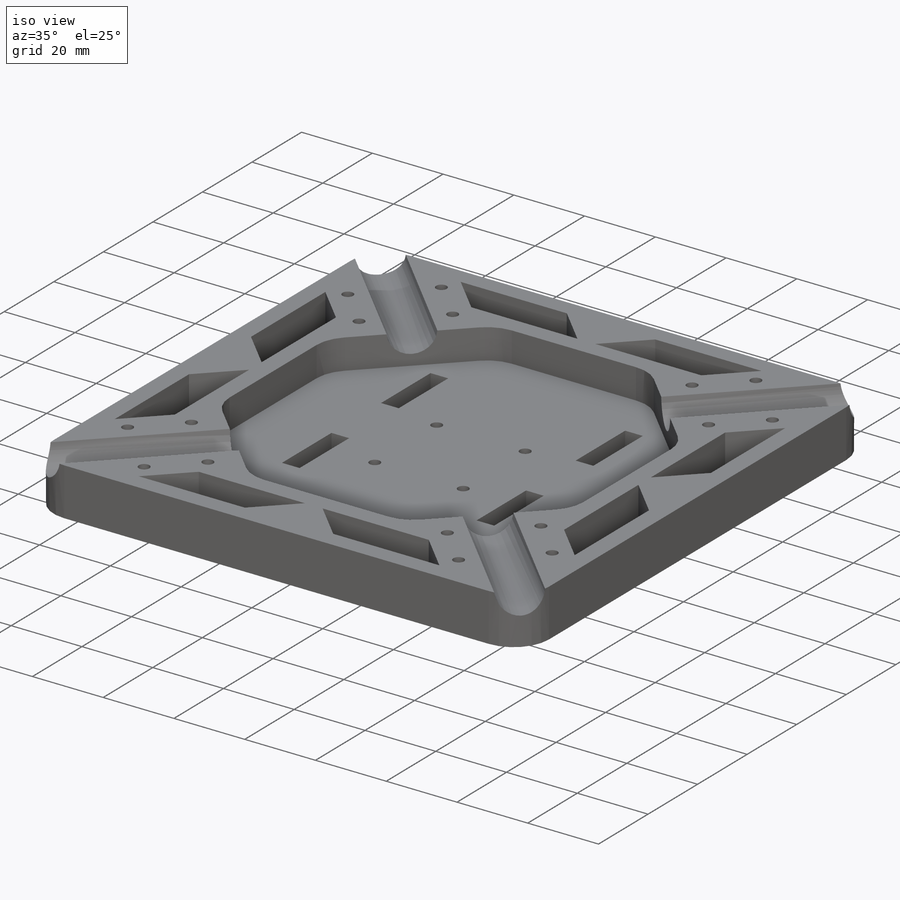
[diagram: iso view]
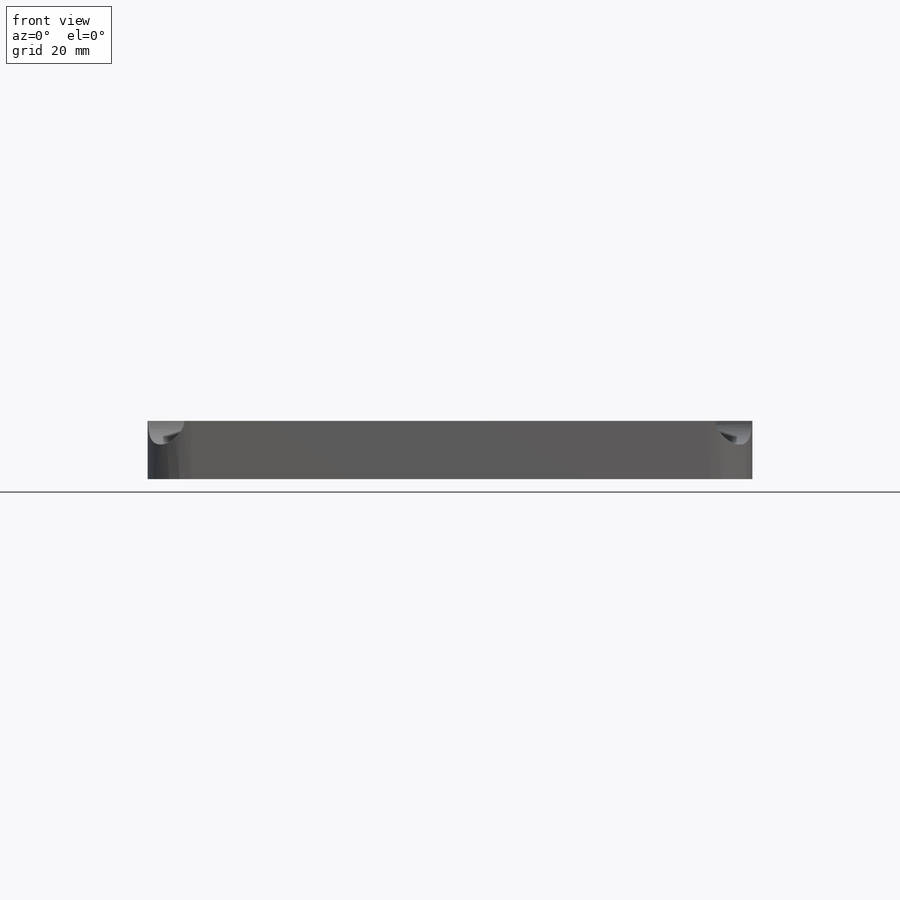
[diagram: front view]
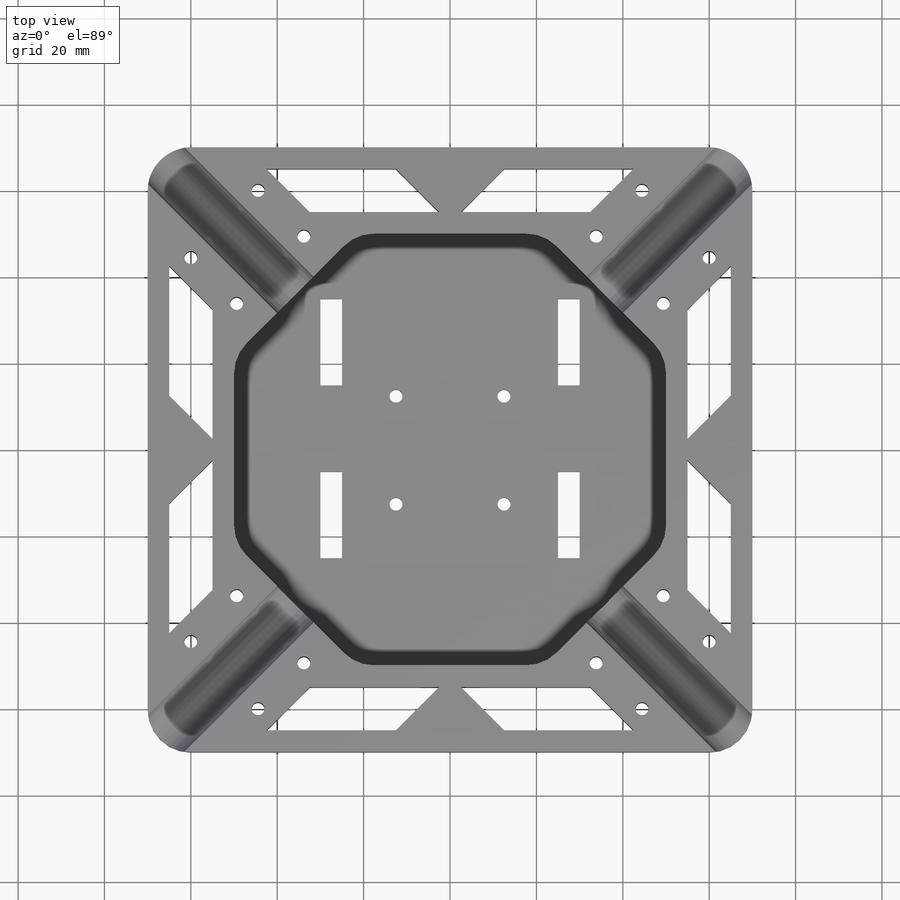
[diagram: top view]
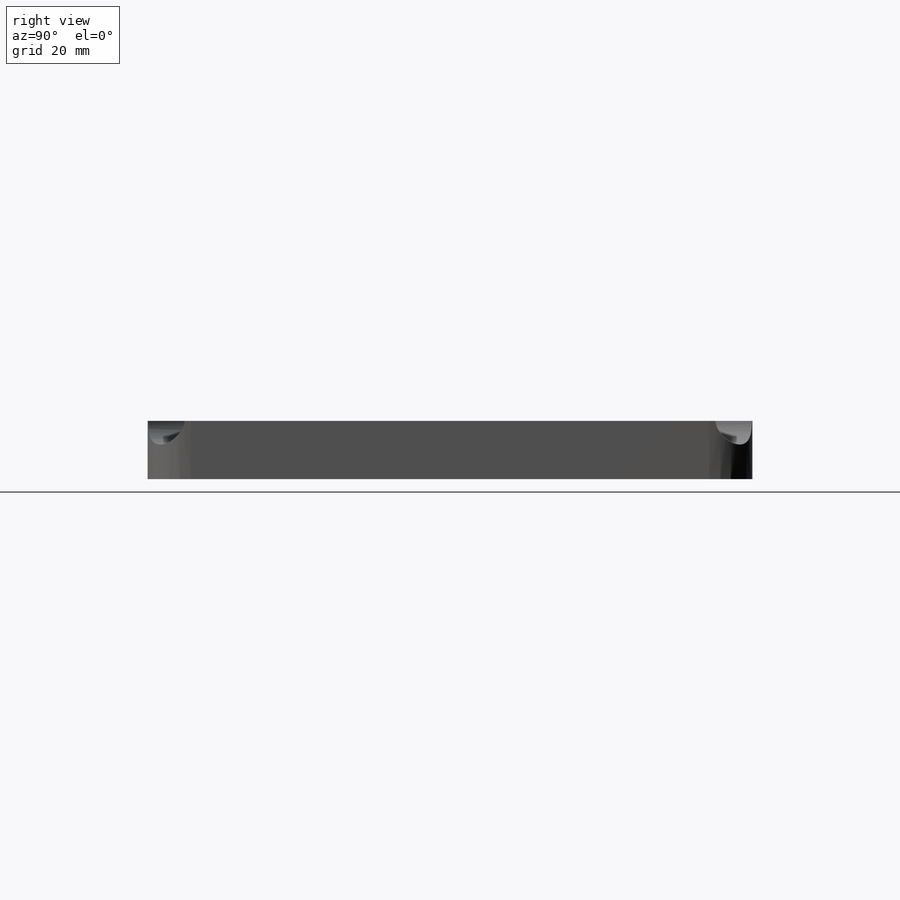
[diagram: right view]
SOLIDWORKS PART (.sldprt)
format: sldprt  version: not decoded by parser v0  size: 489,472 bytes
history: native  units: mm
features: plane x4, sketch x4, cut_extrude x3, material x1, extrude x1, pattern_circular x1, fillet x1 (+8 scaffold rows collapsed)
feature tree (23):
  scaffold x8  (default folders/planes/origin — collapsed)
  material  "Matériau <non spécifié>"
  plane  "Plan de face"
  plane  "Plan de dessus"
  plane  "Plan de droite"
  sketch  "Esquisse1"  dims[c1.D18=10.0mm c1.D19=10.0mm c1.D29=7.0mm c1.D30=7.0mm c1.D49=3.0mm c1.D50=3.0mm c1.D1=140.0mm c1.D2=140.0mm c1.D3=70.0mm c1.D4=70.0mm c1.D5=20.0mm c1.D6=20.0mm c1.D7=100.0mm c1.D8=100.0mm c1.D9=5.0mm c1.D10=5.0mm c1.D11=2.5mm c1.D12=12.5mm c1.D13=30.0mm c1.D14=30.0mm c1.D15=30.0mm c1.D16=30.0mm c2.D5=1.5mm c2.D6=25.0mm c2.D7=1.5mm c2.D8=2.5mm c2.D9=7.5mm c2.D20=7.5mm c2.D21=7.5mm c2.D22=10.0mm c2.D23=5.0mm c2.D24=2.0mm c2.D25=2.0mm c2.D26=1.5mm c2.D27=17.5mm c2.D28=17.5mm c2.D31=7.0mm c2.D32=18.0mm c2.D33=20.0mm c2.D34=15.0mm c2.D35=70.0mm c3.D31=80.0mm c3.D32=40.0mm c3.D36=80.0mm c3.D37=40.0mm c3.D38=25.0mm c3.D39=12.5mm c3.D40=12.5mm c3.D5=25.0mm c3.D6=2.5mm c3.D8=1.5mm c3.D41=20.0mm c3.D42=10.0mm c3.D43=10.0mm c3.D44=2.5mm c3.D45=~32.63496mm c3.D46=2.5mm c3.D47=2.5mm c4.D45=10.0mm c4.D48=~8.520817mm c5.D45=8.5mm c5.D48=8.5mm c5.D40=12.5mm c5.D4=20.0mm c5.D5=20.0mm c5.D6=20.0mm c5.D7=5.0mm c5.D8=5.0mm c5.D9=5.0mm c5.D18=20.0mm c5.D19=5.0mm c5.D20=20.0mm c5.D21=5.0mm c5.D22=20.0mm c5.D23=5.0mm c5.D24=25.0mm c5.D25=25.0mm c5.D26=25.0mm c5.D27=50.0mm c5.D28=50.0mm c5.D29=50.0mm c5.D30=20.0mm c5.D31=10.0mm c5.D32=20.0mm c5.D36=10.0mm c5.D37=25.0mm c5.D38=25.0mm c5.D17=4.0]
  extrude  "Boss.-Extru.1"  Depth=13.5mm
  plane  "Plan1"
  sketch  "Esquisse4"  dims[D1=100.0mm D2=100.0mm D3=20.0mm D4=20.0mm D5=20.0mm D6=20.0mm D7=20.0mm D8=20.0mm]
  cut_extrude  "Enlèv. mat.-Extru.3"  Depth=8.5mm
  sketch  "Esquisse2"  dims[D2=~6.073163mm D1=14.0mm]
  cut_extrude  "Enlèv. mat.-Extru.1"  Depth=100mm
  pattern_circular  "Répétition circulaire1"  Count=2 Angle=90deg
  fillet  "Congé1"  Radius=10mm
  sketch  "Esquisse3"  dims[c1.D1=3.0mm c1.D2=3.0mm c1.D8=3.0mm c1.D9=3.0mm c1.D17=3.0mm c1.D3=10.0mm c1.D4=10.0mm c1.D5=11.0mm c1.D6=11.0mm c2.D3=10.0mm c2.D4=10.0mm c2.D10=11.0mm c2.D11=11.0mm c2.D12=15.0mm c2.D13=15.0mm c2.D15=57.5mm c2.D16=57.5mm c2.D7=4.0 c2.D14=4.0]
  cut_extrude  "Enlèv. mat.-Extru.2"  Depth=13.5mm
decode coverage: 10 of 10 modeling features carry decoded parameters
note: ~ marks probable driven/reference dimensions
note: suppression state not decoded; provenance and decode notes live in map.json
